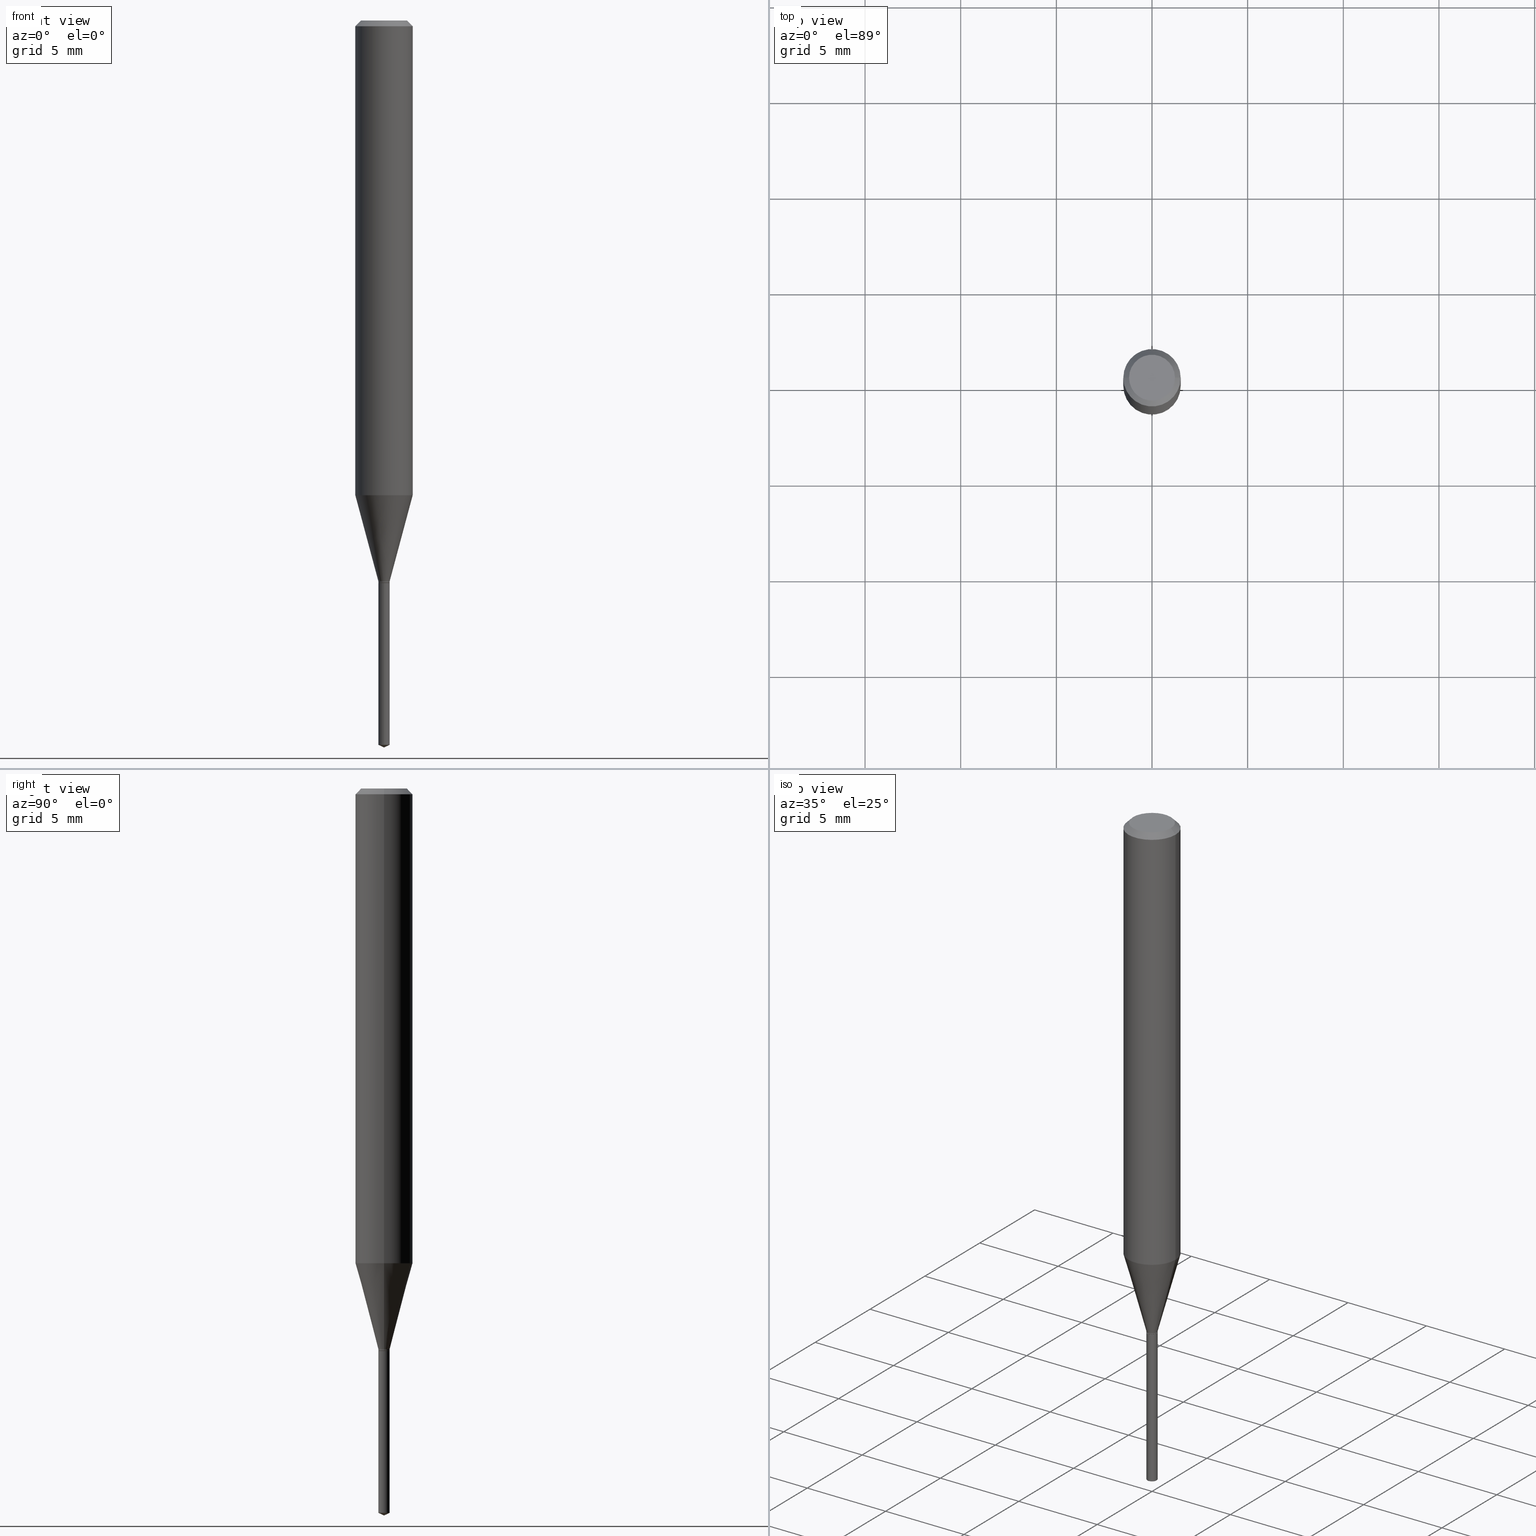
[diagram: canonical four-view strip — front | top / right | iso, engineering-drawing reading convention]
A machine part, canonical four-view strip (front | top / right | iso — engineering-drawing reading convention). The complete STEP part file that produces these views, byte-faithful:
ISO-10303-21;
HEADER;
FILE_DESCRIPTION (( 'STEP AP203' ),
    '1' );
FILE_NAME ('07778.STEP',
    '2024-04-24T02:49:59',
    ( '' ),
    ( '' ),
    'SwSTEP 2.0',
    'SolidWorks 2023',
    '' );
FILE_SCHEMA (( 'CONFIG_CONTROL_DESIGN' ));
ENDSEC;

DATA;
#1 = DIRECTION ( 'NONE',  ( -2.445457056059012515E-29, 3.491498165692530705E-15, 1.000000000000000000 ) ) ;
#2 = CYLINDRICAL_SURFACE ( 'NONE', #40, 0.05905000000000006077 ) ;
#3 = ORIENTED_EDGE ( 'NONE', *, *, #157, .F. ) ;
#4 = CARTESIAN_POINT ( 'NONE',  ( -0.05905000000000011628, -2.991302175709703364E-15, -0.9769141891808567069 ) ) ;
#5 = CIRCLE ( 'NONE', #446, 0.05905000000000011628 ) ;
#6 = PRODUCT_DEFINITION_FORMATION_WITH_SPECIFIED_SOURCE ( 'ANY', '', #358, .NOT_KNOWN. ) ;
#7 = CARTESIAN_POINT ( 'NONE',  ( 2.888098660104664204E-31, -4.123439461173780263E-17, -0.01181000000000007218 ) ) ;
#8 = ORIENTED_EDGE ( 'NONE', *, *, #89, .T. ) ;
#9 = EDGE_CURVE ( 'NONE', #400, #361, #149, .T. ) ;
#10 = DIRECTION ( 'NONE',  ( 2.445468806185136597E-29, -3.491481338843145583E-15, -1.000000000000000000 ) ) ;
#11 = ORIENTED_EDGE ( 'NONE', *, *, #9, .T. ) ;
#12 = CYLINDRICAL_SURFACE ( 'NONE', #175, 0.01159999999999999920 ) ;
#13 = EDGE_CURVE ( 'NONE', #387, #324, #28, .T. ) ;
#14 = EDGE_LOOP ( 'NONE', ( #282, #55, #213, #448 ) ) ;
#15 = VECTOR ( 'NONE', #228, 39.37007874015748143 ) ;
#16 = ORIENTED_EDGE ( 'NONE', *, *, #481, .T. ) ;
#17 = ORIENTED_EDGE ( 'NONE', *, *, #13, .F. ) ;
#18 = CYLINDRICAL_SURFACE ( 'NONE', #332, 0.01159999999999999920 ) ;
#19 = DIRECTION ( 'NONE',  ( 6.439704144417054808E-15, 0.9063077870366557098, 0.4226182617406872843 ) ) ;
#20 = CIRCLE ( 'NONE', #113, 0.01159999999999999920 ) ;
#21 = AXIS2_PLACEMENT_3D ( 'NONE', #374, #1, #34 ) ;
#22 = CARTESIAN_POINT ( 'NONE',  ( -0.01159999999999999920, -3.946746507676818365E-15, -1.153999999999999915 ) ) ;
#23 = APPROVAL_DATE_TIME ( #415, #360 ) ;
#24 = CARTESIAN_POINT ( 'NONE',  ( 3.645434012246895852E-29, -5.204724825550511922E-15, -1.490690831165402130 ) ) ;
#25 = LINE ( 'NONE', #480, #398 ) ;
#26 = APPROVAL_STATUS ( 'not_yet_approved' ) ;
#27 = EDGE_CURVE ( 'NONE', #60, #389, #253, .T. ) ;
#28 = LINE ( 'NONE', #103, #348 ) ;
#29 = COORDINATED_UNIVERSAL_TIME_OFFSET ( 5, 0, .BEHIND. ) ;
#30 = DIRECTION ( 'NONE',  ( -6.982962677686266711E-15, -1.000000000000000000, 3.520397390770377745E-15 ) ) ;
#31 = CIRCLE ( 'NONE', #97, 0.04724000000000000421 ) ;
#32 = DIRECTION ( 'NONE',  ( 1.000000000000000000, -6.982962677686266711E-15, 0.000000000000000000 ) ) ;
#33 = PERSON_AND_ORGANIZATION_ROLE ( 'design_supplier' ) ;
#34 = DIRECTION ( 'NONE',  ( -6.982962677686266711E-15, -1.000000000000000000, 0.000000000000000000 ) ) ;
#35 = CARTESIAN_POINT ( 'NONE',  ( 2.830630143159295633E-29, -4.041389649710940900E-15, -1.157499999999999973 ) ) ;
#36 = ADVANCED_FACE ( 'NONE', ( #182 ), #251, .F. ) ;
#37 = EDGE_CURVE ( 'NONE', #316, #472, #401, .T. ) ;
#38 = DIRECTION ( 'NONE',  ( -2.445468806185136597E-29, 3.491481338843145583E-15, 1.000000000000000000 ) ) ;
#39 = VECTOR ( 'NONE', #451, 39.37007874015748143 ) ;
#40 = AXIS2_PLACEMENT_3D ( 'NONE', #159, #308, #121 ) ;
#41 =( NAMED_UNIT ( * ) PLANE_ANGLE_UNIT ( ) SI_UNIT ( $, .RADIAN. ) );
#42 = DIRECTION ( 'NONE',  ( -2.445468806185136597E-29, 3.491481338843145583E-15, 1.000000000000000000 ) ) ;
#43 = EDGE_CURVE ( 'NONE', #160, #204, #20, .T. ) ;
#44 = CARTESIAN_POINT ( 'NONE',  ( 2.829407408756202832E-29, -4.039643909041518608E-15, -1.156999999999999806 ) ) ;
#45 = ORIENTED_EDGE ( 'NONE', *, *, #481, .F. ) ;
#46 = LINE ( 'NONE', #266, #399 ) ;
#47 = ADVANCED_BREP_SHAPE_REPRESENTATION ( '07778', ( #135, #141, #293 ), #407 ) ;
#48 = DIRECTION ( 'NONE',  ( -6.982962677686266711E-15, -1.000000000000000000, 0.000000000000000000 ) ) ;
#49 = ORIENTED_EDGE ( 'NONE', *, *, #359, .F. ) ;
#50 = AXIS2_PLACEMENT_3D ( 'NONE', #342, #155, #305 ) ;
#51 = DIRECTION ( 'NONE',  ( -2.445468806185136597E-29, 3.491481338843145583E-15, 1.000000000000000000 ) ) ;
#52 = VERTEX_POINT ( 'NONE', #177 ) ;
#53 = CC_DESIGN_PERSON_AND_ORGANIZATION_ASSIGNMENT ( #484, #104, ( #6 ) ) ;
#54 = DIRECTION ( 'NONE',  ( 1.000000000000000000, -6.982962677686266711E-15, 0.000000000000000000 ) ) ;
#55 = ORIENTED_EDGE ( 'NONE', *, *, #359, .T. ) ;
#56 = ADVANCED_FACE ( 'NONE', ( #296 ), #143, .T. ) ;
#57 = CARTESIAN_POINT ( 'NONE',  ( 0.01159999999999999920, -4.120646276102679529E-15, -1.156999999999999806 ) ) ;
#58 = ORIENTED_EDGE ( 'NONE', *, *, #294, .T. ) ;
#59 = APPLICATION_CONTEXT ( 'configuration controlled 3d designs of mechanical parts and assemblies' ) ;
#60 = VERTEX_POINT ( 'NONE', #62 ) ;
#61 = PRODUCT_RELATED_PRODUCT_CATEGORY ( 'detail', '', ( #358 ) ) ;
#62 = CARTESIAN_POINT ( 'NONE',  ( 0.01159999999999999920, -4.110171832086150508E-15, -1.153999999999999915 ) ) ;
#63 = ORIENTED_EDGE ( 'NONE', *, *, #433, .F. ) ;
#64 = CARTESIAN_POINT ( 'NONE',  ( 2.822071002337647144E-29, -4.029169465024989587E-15, -1.153999999999999915 ) ) ;
#65 = VECTOR ( 'NONE', #90, 39.37007874015748143 ) ;
#66 = DIRECTION ( 'NONE',  ( -0.2588190451025213501, 5.211531920934551042E-15, 0.9659258262890682012 ) ) ;
#67 = ADVANCED_FACE ( 'NONE', ( #362 ), #18, .T. ) ;
#68 = ORIENTED_EDGE ( 'NONE', *, *, #134, .T. ) ;
#69 = DIRECTION ( 'NONE',  ( -2.445468806185136597E-29, 3.491481338843145583E-15, 1.000000000000000000 ) ) ;
#70 = ORIENTED_EDGE ( 'NONE', *, *, #377, .T. ) ;
#71 = PERSON_AND_ORGANIZATION ( #230, #98 ) ;
#72 = DIRECTION ( 'NONE',  ( -2.445468806185136597E-29, 3.491481338843145583E-15, 1.000000000000000000 ) ) ;
#73 = DATE_AND_TIME ( #259, #163 ) ;
#74 = FACE_OUTER_BOUND ( 'NONE', #209, .T. ) ;
#75 = CARTESIAN_POINT ( 'NONE',  ( 2.830630143159295633E-29, -4.041389649710940900E-15, -1.157499999999999973 ) ) ;
#76 = LENGTH_MEASURE_WITH_UNIT ( LENGTH_MEASURE( 0.02539999999999999897 ), #312 );
#77 = EDGE_CURVE ( 'NONE', #167, #173, #101, .T. ) ;
#78 = DIRECTION ( 'NONE',  ( -2.445468806185136597E-29, 3.491481338843145583E-15, 1.000000000000000000 ) ) ;
#79 = CLOSED_SHELL ( 'NONE', ( #375, #477, #458, #170, #140 ) ) ;
#80 = CIRCLE ( 'NONE', #268, 0.05904999999999999832 ) ;
#81 = LINE ( 'NONE', #117, #15 ) ;
#82 = DATE_AND_TIME ( #192, #270 ) ;
#83 = DIRECTION ( 'NONE',  ( -6.982962677686266711E-15, -1.000000000000000000, 0.000000000000000000 ) ) ;
#84 = CARTESIAN_POINT ( 'NONE',  ( 8.242295734819991627E-17, 0.01159999999999595729, -1.157499999999999973 ) ) ;
#85 = ORIENTED_EDGE ( 'NONE', *, *, #426, .F. ) ;
#86 = AXIS2_PLACEMENT_3D ( 'NONE', #75, #344, #262 ) ;
#87 = CIRCLE ( 'NONE', #130, 0.01159999999999999920 ) ;
#88 = EDGE_CURVE ( 'NONE', #389, #167, #216, .T. ) ;
#89 = EDGE_CURVE ( 'NONE', #327, #472, #25, .T. ) ;
#90 = DIRECTION ( 'NONE',  ( -0.7071067811865453523, 2.468850131082234184E-15, -0.7071067811865496822 ) ) ;
#91 = ORIENTED_EDGE ( 'NONE', *, *, #13, .T. ) ;
#92 = ADVANCED_FACE ( 'NONE', ( #423 ), #459, .T. ) ;
#93 = FACE_OUTER_BOUND ( 'NONE', #309, .T. ) ;
#94 = EDGE_LOOP ( 'NONE', ( #281, #288, #16, #470 ) ) ;
#95 = ORIENTED_EDGE ( 'NONE', *, *, #153, .T. ) ;
#96 = AXIS2_PLACEMENT_3D ( 'NONE', #198, #264, #265 ) ;
#97 = AXIS2_PLACEMENT_3D ( 'NONE', #380, #38, #421 ) ;
#98 = ORGANIZATION ( 'UNSPECIFIED', 'UNSPECIFIED', '' ) ;
#99 = CARTESIAN_POINT ( 'NONE',  ( 0.000000000000000000, 0.000000000000000000, 0.000000000000000000 ) ) ;
#100 = EDGE_CURVE ( 'NONE', #324, #60, #194, .T. ) ;
#101 = LINE ( 'NONE', #248, #267 ) ;
#102 = DIRECTION ( 'NONE',  ( -2.445468806185136597E-29, 3.491481338843145583E-15, 1.000000000000000000 ) ) ;
#103 = CARTESIAN_POINT ( 'NONE',  ( 0.01110000000000000049, -4.118900535433258025E-15, -1.157499999999999973 ) ) ;
#104 = PERSON_AND_ORGANIZATION_ROLE ( 'creator' ) ;
#105 = AXIS2_PLACEMENT_3D ( 'NONE', #424, #10, #436 ) ;
#106 = ORIENTED_EDGE ( 'NONE', *, *, #377, .F. ) ;
#107 = APPROVAL_DATE_TIME ( #291, #337 ) ;
#108 = ORIENTED_EDGE ( 'NONE', *, *, #37, .T. ) ;
#109 = PERSON_AND_ORGANIZATION ( #230, #98 ) ;
#110 = CARTESIAN_POINT ( 'NONE',  ( 0.05904999999999999832, -4.535783407291118600E-16, -0.01181000000000007218 ) ) ;
#111 = PLANE ( 'NONE',  #86 ) ;
#112 = COORDINATED_UNIVERSAL_TIME_OFFSET ( 5, 0, .BEHIND. ) ;
#113 = AXIS2_PLACEMENT_3D ( 'NONE', #335, #367, #486 ) ;
#114 = EDGE_CURVE ( 'NONE', #361, #210, #301, .T. ) ;
#115 = DIRECTION ( 'NONE',  ( -2.445468806185136877E-29, 3.491481338843145188E-15, 1.000000000000000000 ) ) ;
#116 = SHAPE_DEFINITION_REPRESENTATION ( #304, #47 ) ;
#117 = CARTESIAN_POINT ( 'NONE',  ( -0.01110000000000000049, -3.962519406041569789E-15, -1.157499999999999973 ) ) ;
#118 = APPROVAL_DATE_TIME ( #82, #158 ) ;
#119 = FACE_OUTER_BOUND ( 'NONE', #206, .T. ) ;
#120 = ORIENTED_EDGE ( 'NONE', *, *, #466, .F. ) ;
#121 = DIRECTION ( 'NONE',  ( 1.000000000000000000, -6.982962677686266711E-15, 4.876176775795935793E-29 ) ) ;
#122 = VECTOR ( 'NONE', #235, 39.37007874015748143 ) ;
#123 = DIRECTION ( 'NONE',  ( 1.000000000000000000, -6.982962677686266711E-15, 0.000000000000000000 ) ) ;
#124 = DIRECTION ( 'NONE',  ( 1.000000000000000000, -6.982962677686266711E-15, 0.000000000000000000 ) ) ;
#125 = ORIENTED_EDGE ( 'NONE', *, *, #383, .T. ) ;
#126 = DESIGN_CONTEXT ( 'detailed design', #59, 'design' ) ;
#127 = FACE_OUTER_BOUND ( 'NONE', #94, .T. ) ;
#128 = ORIENTED_EDGE ( 'NONE', *, *, #435, .T. ) ;
#129 = VECTOR ( 'NONE', #115, 39.37007874015748143 ) ;
#130 = AXIS2_PLACEMENT_3D ( 'NONE', #388, #395, #48 ) ;
#131 = APPROVAL_PERSON_ORGANIZATION ( #162, #158, #199 ) ;
#132 = CARTESIAN_POINT ( 'NONE',  ( -0.01159999999999999920, -3.951983729685082876E-15, -1.156999999999999806 ) ) ;
#133 = ORIENTED_EDGE ( 'NONE', *, *, #239, .T. ) ;
#134 = EDGE_CURVE ( 'NONE', #52, #387, #452, .T. ) ;
#135 = MANIFOLD_SOLID_BREP ( 'Body-Move/Copy2[1]', #79 ) ;
#136 = ORIENTED_EDGE ( 'NONE', *, *, #269, .T. ) ;
#137 = ORIENTED_EDGE ( 'NONE', *, *, #43, .T. ) ;
#138 = VECTOR ( 'NONE', #219, 39.37007874015748143 ) ;
#139 = DIRECTION ( 'NONE',  ( -6.328713451373398566E-15, -0.9063077870366527122, 0.4226182617406936126 ) ) ;
#140 = ADVANCED_FACE ( 'NONE', ( #119 ), #111, .F. ) ;
#141 = MANIFOLD_SOLID_BREP ( 'Body-Move/Copy2[2]', #323 ) ;
#142 = CARTESIAN_POINT ( 'NONE',  ( -8.100236706113237413E-17, -0.01160000000000404284, -1.157499999999999973 ) ) ;
#143 = CYLINDRICAL_SURFACE ( 'NONE', #317, 0.01159999999999999920 ) ;
#144 = COORDINATED_UNIVERSAL_TIME_OFFSET ( 5, 0, .BEHIND. ) ;
#145 = DIRECTION ( 'NONE',  ( -2.445457056059012515E-29, 3.491498165692530705E-15, 1.000000000000000000 ) ) ;
#146 = ORIENTED_EDGE ( 'NONE', *, *, #9, .F. ) ;
#147 = APPROVAL_STATUS ( 'not_yet_approved' ) ;
#148 = ORIENTED_EDGE ( 'NONE', *, *, #285, .F. ) ;
#149 = LINE ( 'NONE', #371, #460 ) ;
#150 = PERSON_AND_ORGANIZATION_ROLE ( 'classification_officer' ) ;
#151 = FACE_OUTER_BOUND ( 'NONE', #385, .T. ) ;
#152 = APPROVAL_ROLE ( '' ) ;
#153 = EDGE_CURVE ( 'NONE', #432, #389, #258, .T. ) ;
#154 = AXIS2_PLACEMENT_3D ( 'NONE', #191, #376, #338 ) ;
#155 = DIRECTION ( 'NONE',  ( -2.445468806185136597E-29, 3.491481338843145583E-15, 1.000000000000000000 ) ) ;
#156 = FACE_OUTER_BOUND ( 'NONE', #214, .T. ) ;
#157 = EDGE_CURVE ( 'NONE', #52, #432, #81, .T. ) ;
#158 = APPROVAL ( #381, 'UNSPECIFIED' ) ;
#159 = CARTESIAN_POINT ( 'NONE',  ( 0.000000000000000000, 0.000000000000000000, 0.000000000000000000 ) ) ;
#160 = VERTEX_POINT ( 'NONE', #234 ) ;
#161 = CARTESIAN_POINT ( 'NONE',  ( 8.242295734820810070E-17, 0.01159999999999595729, -1.157499999999999973 ) ) ;
#162 = PERSON_AND_ORGANIZATION ( #230, #98 ) ;
#163 = LOCAL_TIME ( 22, 49, 59.00000000000000000, #112 ) ;
#164 = DIRECTION ( 'NONE',  ( 0.2588190451025213501, 1.565188264969621968E-15, 0.9659258262890682012 ) ) ;
#165 = EDGE_LOOP ( 'NONE', ( #355, #95, #369, #245 ) ) ;
#166 = FACE_OUTER_BOUND ( 'NONE', #280, .T. ) ;
#167 = VERTEX_POINT ( 'NONE', #4 ) ;
#168 = CARTESIAN_POINT ( 'NONE',  ( 2.830630143159295633E-29, -4.041389649710940900E-15, -1.157499999999999973 ) ) ;
#169 = EDGE_LOOP ( 'NONE', ( #444, #483, #364, #45 ) ) ;
#170 = ADVANCED_FACE ( 'NONE', ( #74 ), #231, .T. ) ;
#171 = CONICAL_SURFACE ( 'NONE', #50, 0.01110000000000000049, 0.7853981633974119747 ) ;
#172 = VERTEX_POINT ( 'NONE', #190 ) ;
#173 = VERTEX_POINT ( 'NONE', #232 ) ;
#174 = DIRECTION ( 'NONE',  ( -2.445468806185136597E-29, 3.491481338843145583E-15, 1.000000000000000000 ) ) ;
#175 = AXIS2_PLACEMENT_3D ( 'NONE', #318, #352, #354 ) ;
#176 = LINE ( 'NONE', #467, #65 ) ;
#177 = CARTESIAN_POINT ( 'NONE',  ( -0.01110000000000000049, -3.959870178867458588E-15, -1.157499999999999973 ) ) ;
#178 = CALENDAR_DATE ( 2024, 23, 4 ) ;
#179 = CARTESIAN_POINT ( 'NONE',  ( -9.261917495037615480E-28, 1.322369467758159045E-13, 37.87397874015748300 ) ) ;
#180 = CARTESIAN_POINT ( 'NONE',  ( 0.05904999999999999832, -4.463468013801466955E-16, -0.01181000000000007218 ) ) ;
#181 = APPLICATION_PROTOCOL_DEFINITION ( 'international standard', 'config_control_design', 1994, #59 ) ;
#182 = FACE_OUTER_BOUND ( 'NONE', #238, .T. ) ;
#183 = DATE_AND_TIME ( #339, #310 ) ;
#184 = ADVANCED_FACE ( 'NONE', ( #386 ), #246, .T. ) ;
#185 = ADVANCED_FACE ( 'NONE', ( #156 ), #457, .F. ) ;
#186 = CIRCLE ( 'NONE', #422, 0.01159999999999999920 ) ;
#187 = LOCAL_TIME ( 22, 49, 59.00000000000000000, #144 ) ;
#188 = CARTESIAN_POINT ( 'NONE',  ( 4.132873053354867254E-48, -5.900647395337818946E-34, -1.690012582823346072E-19 ) ) ;
#189 = PERSON_AND_ORGANIZATION ( #230, #98 ) ;
#190 = CARTESIAN_POINT ( 'NONE',  ( -0.04724000000000000421, 3.504923541997677355E-16, -3.380025165670481712E-19 ) ) ;
#191 = CARTESIAN_POINT ( 'NONE',  ( 2.888098660104664204E-31, -4.123439461173780263E-17, -0.01181000000000007218 ) ) ;
#192 = CALENDAR_DATE ( 2024, 23, 4 ) ;
#193 = CIRCLE ( 'NONE', #334, 0.01110000000000000049 ) ;
#194 = LINE ( 'NONE', #271, #39 ) ;
#195 = CC_DESIGN_DATE_AND_TIME_ASSIGNMENT ( #73, #229, ( #220 ) ) ;
#196 = DIRECTION ( 'NONE',  ( 1.000000000000000000, -6.982962677686266711E-15, 0.000000000000000000 ) ) ;
#197 =( CONVERSION_BASED_UNIT ( 'INCH', #76 ) LENGTH_UNIT ( ) NAMED_UNIT ( #307 ) );
#198 = CARTESIAN_POINT ( 'NONE',  ( 2.830630143159295633E-29, -4.041389649710940900E-15, -1.157499999999999973 ) ) ;
#199 = APPROVAL_ROLE ( '' ) ;
#200 = CC_DESIGN_PERSON_AND_ORGANIZATION_ASSIGNMENT ( #109, #33, ( #6 ) ) ;
#201 = AXIS2_PLACEMENT_3D ( 'NONE', #299, #72, #345 ) ;
#202 = DIRECTION ( 'NONE',  ( -2.445468806185136597E-29, 3.491481338843145583E-15, 1.000000000000000000 ) ) ;
#203 = AXIS2_PLACEMENT_3D ( 'NONE', #64, #242, #123 ) ;
#204 = VERTEX_POINT ( 'NONE', #161 ) ;
#205 = CARTESIAN_POINT ( 'NONE',  ( 2.389013175961430346E-29, -3.410877661176043645E-15, -0.9769141891808567069 ) ) ;
#206 = EDGE_LOOP ( 'NONE', ( #137, #278 ) ) ;
#207 = DIRECTION ( 'NONE',  ( 1.000000000000000000, -6.982962677686266711E-15, 0.000000000000000000 ) ) ;
#208 = ADVANCED_FACE ( 'NONE', ( #151 ), #171, .T. ) ;
#209 = EDGE_LOOP ( 'NONE', ( #331, #125, #223, #63 ) ) ;
#210 = VERTEX_POINT ( 'NONE', #306 ) ;
#211 = CONICAL_SURFACE ( 'NONE', #292, 84.42940631927616835, 1.134464013796324222 ) ;
#212 = CIRCLE ( 'NONE', #356, 0.01159999999999999920 ) ;
#213 = ORIENTED_EDGE ( 'NONE', *, *, #100, .T. ) ;
#214 = EDGE_LOOP ( 'NONE', ( #275, #295 ) ) ;
#215 = CARTESIAN_POINT ( 'NONE',  ( -8.100236706112417737E-17, -0.01160000000000520164, -1.490690831165402130 ) ) ;
#216 = LINE ( 'NONE', #22, #343 ) ;
#217 = DIRECTION ( 'NONE',  ( 0.000000000000000000, 0.000000000000000000, 1.000000000000000000 ) ) ;
#218 = CONICAL_SURFACE ( 'NONE', #418, 0.01110000000000000049, 0.7853981633974119747 ) ;
#219 = DIRECTION ( 'NONE',  ( -2.445457056059012515E-29, 3.491498165692530705E-15, 1.000000000000000000 ) ) ;
#220 = SECURITY_CLASSIFICATION ( '', '', #487 ) ;
#221 = DIRECTION ( 'NONE',  ( 1.000000000000000000, -6.982962677686267499E-15, 4.876176775795935793E-29 ) ) ;
#222 = DIRECTION ( 'NONE',  ( -6.982962677686266711E-15, -1.000000000000000000, 3.520397390770377745E-15 ) ) ;
#223 = ORIENTED_EDGE ( 'NONE', *, *, #370, .T. ) ;
#224 = DIRECTION ( 'NONE',  ( 0.7071067811865218156, -2.468850131081987665E-15, 0.7071067811865732189 ) ) ;
#225 = MECHANICAL_CONTEXT ( 'NONE', #428, 'mechanical' ) ;
#226 = CIRCLE ( 'NONE', #473, 0.05905000000000011628 ) ;
#227 = CC_DESIGN_APPROVAL ( #360, ( #300 ) ) ;
#228 = DIRECTION ( 'NONE',  ( -0.7071067811865218156, 7.493145998870261075E-15, 0.7071067811865732189 ) ) ;
#229 = DATE_TIME_ROLE ( 'classification_date' ) ;
#230 = PERSON ( 'UNSPECIFIED', 'UNSPECIFIED', 'UNSPECIFIED', ('UNSPECIFIED'), ('UNSPECIFIED'), ('UNSPECIFIED') ) ;
#231 = CYLINDRICAL_SURFACE ( 'NONE', #21, 0.01159999999999999920 ) ;
#232 = CARTESIAN_POINT ( 'NONE',  ( -0.05904999999999999832, -1.306480542427550405E-15, -0.01181000000000007218 ) ) ;
#233 = CARTESIAN_POINT ( 'NONE',  ( 2.389013175961430346E-29, -3.410877661176043645E-15, -0.9769141891808567069 ) ) ;
#234 = CARTESIAN_POINT ( 'NONE',  ( -8.100236706113237413E-17, -0.01160000000000404284, -1.157499999999999973 ) ) ;
#235 = DIRECTION ( 'NONE',  ( -2.445457056059012515E-29, 3.491498165692530705E-15, 1.000000000000000000 ) ) ;
#236 = EDGE_LOOP ( 'NONE', ( #146, #468, #413 ) ) ;
#237 = LINE ( 'NONE', #84, #138 ) ;
#238 = EDGE_LOOP ( 'NONE', ( #243, #133 ) ) ;
#239 = EDGE_CURVE ( 'NONE', #316, #172, #430, .T. ) ;
#240 = LINE ( 'NONE', #363, #406 ) ;
#241 = EDGE_LOOP ( 'NONE', ( #427, #11, #353 ) ) ;
#242 = DIRECTION ( 'NONE',  ( -2.445468806185136597E-29, 3.491481338843145583E-15, 1.000000000000000000 ) ) ;
#243 = ORIENTED_EDGE ( 'NONE', *, *, #249, .T. ) ;
#244 = AXIS2_PLACEMENT_3D ( 'NONE', #450, #489, #419 ) ;
#245 = ORIENTED_EDGE ( 'NONE', *, *, #100, .F. ) ;
#246 = CONICAL_SURFACE ( 'NONE', #154, 0.05904999999999999832, 0.7853981633974452814 ) ;
#247 = ORIENTED_EDGE ( 'NONE', *, *, #426, .T. ) ;
#248 = CARTESIAN_POINT ( 'NONE',  ( -0.05905000000000006077, 4.195754854663395916E-16, -2.904631170795524694E-30 ) ) ;
#249 = EDGE_CURVE ( 'NONE', #172, #316, #31, .T. ) ;
#250 = DIRECTION ( 'NONE',  ( -2.445457056059012515E-29, 3.491498165692530705E-15, 1.000000000000000000 ) ) ;
#251 = PLANE ( 'NONE',  #429 ) ;
#252 = APPLICATION_PROTOCOL_DEFINITION ( 'international standard', 'config_control_design', 1994, #428 ) ;
#253 = CIRCLE ( 'NONE', #417, 0.01159999999999999920 ) ;
#254 = CONICAL_SURFACE ( 'NONE', #203, 0.01159999999999999920, 0.2617993877991500740 ) ;
#255 = CC_DESIGN_APPROVAL ( #158, ( #220 ) ) ;
#256 = DIRECTION ( 'NONE',  ( 2.438088387897960049E-29, -3.491481338843145188E-15, -1.000000000000000000 ) ) ;
#257 = CARTESIAN_POINT ( 'NONE',  ( 2.822071002337647144E-29, -4.029169465024989587E-15, -1.153999999999999915 ) ) ;
#258 = LINE ( 'NONE', #416, #129 ) ;
#259 = CALENDAR_DATE ( 2024, 23, 4 ) ;
#260 = DIRECTION ( 'NONE',  ( -2.445457056059012515E-29, 3.491498165692530705E-15, 1.000000000000000000 ) ) ;
#261 = AXIS2_PLACEMENT_3D ( 'NONE', #404, #431, #124 ) ;
#262 = DIRECTION ( 'NONE',  ( 6.982962677686265922E-15, 1.000000000000000000, -3.491498165692530705E-15 ) ) ;
#263 = COORDINATED_UNIVERSAL_TIME_OFFSET ( 5, 0, .BEHIND. ) ;
#264 = DIRECTION ( 'NONE',  ( -2.445468806185136597E-29, 3.491481338843145583E-15, 1.000000000000000000 ) ) ;
#265 = DIRECTION ( 'NONE',  ( 1.000000000000000000, -6.982962677686262766E-15, 0.000000000000000000 ) ) ;
#266 = CARTESIAN_POINT ( 'NONE',  ( 0.01159999999999999920, -4.110171832086150508E-15, -1.153999999999999915 ) ) ;
#267 = VECTOR ( 'NONE', #402, 39.37007874015748143 ) ;
#268 = AXIS2_PLACEMENT_3D ( 'NONE', #412, #69, #485 ) ;
#269 = EDGE_CURVE ( 'NONE', #167, #327, #5, .T. ) ;
#270 = LOCAL_TIME ( 22, 49, 59.00000000000000000, #263 ) ;
#271 = CARTESIAN_POINT ( 'NONE',  ( 0.01159999999999999920, -8.100236706116069917E-17, 5.656365059923285338E-31 ) ) ;
#272 = LINE ( 'NONE', #142, #122 ) ;
#273 = ADVANCED_FACE ( 'NONE', ( #384 ), #2, .T. ) ;
#274 = DIRECTION ( 'NONE',  ( -2.445468806185136597E-29, 3.491481338843145583E-15, 1.000000000000000000 ) ) ;
#275 = ORIENTED_EDGE ( 'NONE', *, *, #435, .F. ) ;
#276 = FACE_OUTER_BOUND ( 'NONE', #169, .T. ) ;
#277 = CONICAL_SURFACE ( 'NONE', #105, 0.05904999999999999832, 0.7853981633974452814 ) ;
#278 = ORIENTED_EDGE ( 'NONE', *, *, #433, .T. ) ;
#279 = CARTESIAN_POINT ( 'NONE',  ( 3.658648301569888039E-29, -5.223630405692595388E-15, -1.496099999999999985 ) ) ;
#280 = EDGE_LOOP ( 'NONE', ( #474, #58, #471, #351 ) ) ;
#281 = ORIENTED_EDGE ( 'NONE', *, *, #88, .F. ) ;
#282 = ORIENTED_EDGE ( 'NONE', *, *, #153, .F. ) ;
#283 = CIRCLE ( 'NONE', #482, 0.01159999999999999920 ) ;
#284 = APPROVAL_PERSON_ORGANIZATION ( #453, #337, #330 ) ;
#285 = EDGE_CURVE ( 'NONE', #324, #432, #283, .T. ) ;
#286 = DIRECTION ( 'NONE',  ( -2.445468806185136597E-29, 3.491481338843145583E-15, 1.000000000000000000 ) ) ;
#287 = CARTESIAN_POINT ( 'NONE',  ( -0.01159999999999999920, -3.951983729685082876E-15, -1.153999999999999915 ) ) ;
#288 = ORIENTED_EDGE ( 'NONE', *, *, #439, .T. ) ;
#289 = PERSON_AND_ORGANIZATION ( #230, #98 ) ;
#290 = DIRECTION ( 'NONE',  ( -1.000000000000000000, 6.982962677686265922E-15, -4.876176775795935793E-29 ) ) ;
#291 = DATE_AND_TIME ( #178, #462 ) ;
#292 = AXIS2_PLACEMENT_3D ( 'NONE', #302, #260, #30 ) ;
#293 = AXIS2_PLACEMENT_3D ( 'NONE', #479, #217, #447 ) ;
#294 = EDGE_CURVE ( 'NONE', #210, #204, #237, .T. ) ;
#295 = ORIENTED_EDGE ( 'NONE', *, *, #134, .F. ) ;
#296 = FACE_OUTER_BOUND ( 'NONE', #165, .T. ) ;
#297 = CALENDAR_DATE ( 2024, 23, 4 ) ;
#298 = DIRECTION ( 'NONE',  ( 1.000000000000000000, -6.982962677686266711E-15, 0.000000000000000000 ) ) ;
#299 = CARTESIAN_POINT ( 'NONE',  ( 0.000000000000000000, 0.000000000000000000, 0.000000000000000000 ) ) ;
#300 = PRODUCT_DEFINITION ( 'UNKNOWN', '', #6, #126 ) ;
#301 = CIRCLE ( 'NONE', #244, 0.01159999999999999920 ) ;
#302 = CARTESIAN_POINT ( 'NONE',  ( -9.261917495037615480E-28, 1.322369467758159045E-13, 37.87397874015748300 ) ) ;
#303 = AXIS2_PLACEMENT_3D ( 'NONE', #455, #42, #420 ) ;
#304 = PRODUCT_DEFINITION_SHAPE ( 'NONE', 'NONE',  #300 ) ;
#305 = DIRECTION ( 'NONE',  ( 1.000000000000000000, -6.982962677686262766E-15, 0.000000000000000000 ) ) ;
#306 = CARTESIAN_POINT ( 'NONE',  ( 8.242295734820805139E-17, 0.01159999999999478983, -1.490690831165402130 ) ) ;
#307 = DIMENSIONAL_EXPONENTS ( 1.000000000000000000, 0.000000000000000000, 0.000000000000000000, 0.000000000000000000, 0.000000000000000000, 0.000000000000000000, 0.000000000000000000 ) ;
#308 = DIRECTION ( 'NONE',  ( -2.445468806185136597E-29, 3.491481338843145583E-15, 1.000000000000000000 ) ) ;
#309 = EDGE_LOOP ( 'NONE', ( #128, #397, #148, #17 ) ) ;
#310 = LOCAL_TIME ( 22, 49, 59.00000000000000000, #29 ) ;
#311 = DIRECTION ( 'NONE',  ( 1.000000000000000000, -6.982962677686266711E-15, 0.000000000000000000 ) ) ;
#312 =( LENGTH_UNIT ( ) NAMED_UNIT ( * ) SI_UNIT ( $, .METRE. ) );
#313 = CARTESIAN_POINT ( 'NONE',  ( 2.822071002337647144E-29, -4.029169465024989587E-15, -1.153999999999999915 ) ) ;
#314 = ORIENTED_EDGE ( 'NONE', *, *, #239, .F. ) ;
#315 = DIRECTION ( 'NONE',  ( -2.445468806185136597E-29, 3.491481338843145583E-15, 1.000000000000000000 ) ) ;
#316 = VERTEX_POINT ( 'NONE', #476 ) ;
#317 = AXIS2_PLACEMENT_3D ( 'NONE', #99, #286, #221 ) ;
#318 = CARTESIAN_POINT ( 'NONE',  ( 2.830630143159295633E-29, -4.041389649710940900E-15, -1.157499999999999973 ) ) ;
#319 = CIRCLE ( 'NONE', #261, 0.01159999999999999920 ) ;
#320 = EDGE_LOOP ( 'NONE', ( #357, #136, #8, #106 ) ) ;
#321 = ORIENTED_EDGE ( 'NONE', *, *, #77, .T. ) ;
#322 = EDGE_LOOP ( 'NONE', ( #465, #438, #247, #70 ) ) ;
#323 = CLOSED_SHELL ( 'NONE', ( #328, #379, #273, #347, #56, #67, #340, #92, #184, #36, #185, #208 ) ) ;
#324 = VERTEX_POINT ( 'NONE', #57 ) ;
#325 = AXIS2_PLACEMENT_3D ( 'NONE', #35, #488, #346 ) ;
#326 = CARTESIAN_POINT ( 'NONE',  ( 2.830630143159295633E-29, -4.041389649710940900E-15, -1.157499999999999973 ) ) ;
#327 = VERTEX_POINT ( 'NONE', #391 ) ;
#328 = ADVANCED_FACE ( 'NONE', ( #93 ), #218, .T. ) ;
#329 = DIRECTION ( 'NONE',  ( 0.7071067811865453523, -7.319954787623248157E-15, -0.7071067811865496822 ) ) ;
#330 = APPROVAL_ROLE ( '' ) ;
#331 = ORIENTED_EDGE ( 'NONE', *, *, #294, .F. ) ;
#332 = AXIS2_PLACEMENT_3D ( 'NONE', #478, #174, #442 ) ;
#333 = COORDINATED_UNIVERSAL_TIME_OFFSET ( 5, 0, .BEHIND. ) ;
#334 = AXIS2_PLACEMENT_3D ( 'NONE', #326, #202, #350 ) ;
#335 = CARTESIAN_POINT ( 'NONE',  ( 2.830630143159295633E-29, -4.041389649710940900E-15, -1.157499999999999973 ) ) ;
#336 = PERSON_AND_ORGANIZATION ( #230, #98 ) ;
#337 = APPROVAL ( #26, 'UNSPECIFIED' ) ;
#338 = DIRECTION ( 'NONE',  ( -1.000000000000000000, 6.982962677686266711E-15, 0.000000000000000000 ) ) ;
#339 = CALENDAR_DATE ( 2024, 23, 4 ) ;
#340 = ADVANCED_FACE ( 'NONE', ( #127 ), #254, .T. ) ;
#341 = EDGE_CURVE ( 'NONE', #327, #167, #226, .T. ) ;
#342 = CARTESIAN_POINT ( 'NONE',  ( 2.830630143159295633E-29, -4.041389649710940900E-15, -1.157499999999999973 ) ) ;
#343 = VECTOR ( 'NONE', #66, 39.37007874015747433 ) ;
#344 = DIRECTION ( 'NONE',  ( 2.445457056059012235E-29, -3.491498165692530705E-15, -1.000000000000000000 ) ) ;
#345 = DIRECTION ( 'NONE',  ( 1.000000000000000000, -6.982962677686266711E-15, 4.876176775795935793E-29 ) ) ;
#346 = DIRECTION ( 'NONE',  ( 1.000000000000000000, -6.982962677686265922E-15, 4.876176775795935793E-29 ) ) ;
#347 = ADVANCED_FACE ( 'NONE', ( #276 ), #490, .T. ) ;
#348 = VECTOR ( 'NONE', #224, 39.37007874015748143 ) ;
#349 = CC_DESIGN_SECURITY_CLASSIFICATION ( #220, ( #6 ) ) ;
#350 = DIRECTION ( 'NONE',  ( 1.000000000000000000, -6.982962677686262766E-15, 0.000000000000000000 ) ) ;
#351 = ORIENTED_EDGE ( 'NONE', *, *, #370, .F. ) ;
#352 = DIRECTION ( 'NONE',  ( -2.445457056059012515E-29, 3.491498165692530705E-15, 1.000000000000000000 ) ) ;
#353 = ORIENTED_EDGE ( 'NONE', *, *, #383, .F. ) ;
#354 = DIRECTION ( 'NONE',  ( -6.982962677686266711E-15, -1.000000000000000000, 0.000000000000000000 ) ) ;
#355 = ORIENTED_EDGE ( 'NONE', *, *, #285, .T. ) ;
#356 = AXIS2_PLACEMENT_3D ( 'NONE', #24, #250, #83 ) ;
#357 = ORIENTED_EDGE ( 'NONE', *, *, #77, .F. ) ;
#358 = PRODUCT ( '07778', '07778', '', ( #225 ) ) ;
#359 = EDGE_CURVE ( 'NONE', #432, #324, #319, .T. ) ;
#360 = APPROVAL ( #147, 'UNSPECIFIED' ) ;
#361 = VERTEX_POINT ( 'NONE', #215 ) ;
#362 = FACE_OUTER_BOUND ( 'NONE', #14, .T. ) ;
#363 = CARTESIAN_POINT ( 'NONE',  ( 3.658675741637279389E-29, -5.223591451536267840E-15, -1.496099999999999985 ) ) ;
#364 = ORIENTED_EDGE ( 'NONE', *, *, #341, .F. ) ;
#365 = APPROVAL_PERSON_ORGANIZATION ( #71, #360, #152 ) ;
#366 = DIRECTION ( 'NONE',  ( 1.000000000000000000, -6.982962677686266711E-15, 0.000000000000000000 ) ) ;
#367 = DIRECTION ( 'NONE',  ( -2.445457056059012515E-29, 3.491498165692530705E-15, 1.000000000000000000 ) ) ;
#368 = PERSON_AND_ORGANIZATION_ROLE ( 'creator' ) ;
#369 = ORIENTED_EDGE ( 'NONE', *, *, #27, .F. ) ;
#370 = EDGE_CURVE ( 'NONE', #361, #160, #272, .T. ) ;
#371 = CARTESIAN_POINT ( 'NONE',  ( 3.658648301569888039E-29, -5.223630405692593810E-15, -1.496099999999999985 ) ) ;
#372 = VECTOR ( 'NONE', #329, 39.37007874015748143 ) ;
#373 = CC_DESIGN_APPROVAL ( #337, ( #6 ) ) ;
#374 = CARTESIAN_POINT ( 'NONE',  ( 2.830630143159295633E-29, -4.041389649710940900E-15, -1.157499999999999973 ) ) ;
#375 = ADVANCED_FACE ( 'NONE', ( #166 ), #12, .T. ) ;
#376 = DIRECTION ( 'NONE',  ( 2.445468806185136597E-29, -3.491481338843145583E-15, -1.000000000000000000 ) ) ;
#377 = EDGE_CURVE ( 'NONE', #173, #472, #390, .T. ) ;
#378 = FACE_OUTER_BOUND ( 'NONE', #236, .T. ) ;
#379 = ADVANCED_FACE ( 'NONE', ( #425 ), #277, .T. ) ;
#380 = CARTESIAN_POINT ( 'NONE',  ( 8.265746106709734507E-48, -1.180129479067563789E-33, -3.380025165646692144E-19 ) ) ;
#381 = APPROVAL_STATUS ( 'not_yet_approved' ) ;
#382 = AXIS2_PLACEMENT_3D ( 'NONE', #443, #315, #207 ) ;
#383 = EDGE_CURVE ( 'NONE', #210, #361, #212, .T. ) ;
#384 = FACE_OUTER_BOUND ( 'NONE', #441, .T. ) ;
#385 = EDGE_LOOP ( 'NONE', ( #3, #68, #91, #49 ) ) ;
#386 = FACE_OUTER_BOUND ( 'NONE', #322, .T. ) ;
#387 = VERTEX_POINT ( 'NONE', #469 ) ;
#388 = CARTESIAN_POINT ( 'NONE',  ( 2.830630143159295633E-29, -4.041389649710940900E-15, -1.157499999999999973 ) ) ;
#389 = VERTEX_POINT ( 'NONE', #287 ) ;
#390 = CIRCLE ( 'NONE', #454, 0.05904999999999999832 ) ;
#391 = CARTESIAN_POINT ( 'NONE',  ( 0.05905000000000011628, -3.823221607293418566E-15, -0.9769141891808567069 ) ) ;
#392 = ORIENTED_EDGE ( 'NONE', *, *, #466, .T. ) ;
#393 = DIRECTION ( 'NONE',  ( 1.000000000000000000, -6.982962677686262766E-15, 0.000000000000000000 ) ) ;
#394 = ORIENTED_EDGE ( 'NONE', *, *, #341, .T. ) ;
#395 = DIRECTION ( 'NONE',  ( -2.445457056059012515E-29, 3.491498165692530705E-15, 1.000000000000000000 ) ) ;
#396 = CC_DESIGN_DATE_AND_TIME_ASSIGNMENT ( #183, #408, ( #300 ) ) ;
#397 = ORIENTED_EDGE ( 'NONE', *, *, #157, .T. ) ;
#398 = VECTOR ( 'NONE', #445, 39.37007874015748143 ) ;
#399 = VECTOR ( 'NONE', #164, 39.37007874015747433 ) ;
#400 = VERTEX_POINT ( 'NONE', #279 ) ;
#401 = LINE ( 'NONE', #180, #372 ) ;
#402 = DIRECTION ( 'NONE',  ( -2.445468806185136877E-29, 3.491481338843145188E-15, 1.000000000000000000 ) ) ;
#403 =( NAMED_UNIT ( * ) SI_UNIT ( $, .STERADIAN. ) SOLID_ANGLE_UNIT ( ) );
#404 = CARTESIAN_POINT ( 'NONE',  ( 2.829407408756202832E-29, -4.039643909041518608E-15, -1.156999999999999806 ) ) ;
#405 = DIRECTION ( 'NONE',  ( -2.445468806185136597E-29, 3.491481338843145583E-15, 1.000000000000000000 ) ) ;
#406 = VECTOR ( 'NONE', #19, 39.37007874015748854 ) ;
#407 =( GEOMETRIC_REPRESENTATION_CONTEXT ( 3 ) GLOBAL_UNCERTAINTY_ASSIGNED_CONTEXT ( ( #475 ) ) GLOBAL_UNIT_ASSIGNED_CONTEXT ( ( #197, #41, #403 ) ) REPRESENTATION_CONTEXT ( 'NONE', 'WORKASPACE' ) );
#408 = DATE_TIME_ROLE ( 'creation_date' ) ;
#409 = CC_DESIGN_PERSON_AND_ORGANIZATION_ASSIGNMENT ( #336, #449, ( #358 ) ) ;
#410 = FACE_OUTER_BOUND ( 'NONE', #241, .T. ) ;
#411 = EDGE_LOOP ( 'NONE', ( #314, #108, #392, #85 ) ) ;
#412 = CARTESIAN_POINT ( 'NONE',  ( 2.888098660104664204E-31, -4.123439461173780263E-17, -0.01181000000000007218 ) ) ;
#413 = ORIENTED_EDGE ( 'NONE', *, *, #114, .F. ) ;
#414 = CC_DESIGN_PERSON_AND_ORGANIZATION_ASSIGNMENT ( #189, #150, ( #220 ) ) ;
#415 = DATE_AND_TIME ( #297, #187 ) ;
#416 = CARTESIAN_POINT ( 'NONE',  ( -0.01159999999999999920, 8.242295734817161588E-17, -5.705964704695690155E-31 ) ) ;
#417 = AXIS2_PLACEMENT_3D ( 'NONE', #257, #405, #32 ) ;
#418 = AXIS2_PLACEMENT_3D ( 'NONE', #168, #51, #393 ) ;
#419 = DIRECTION ( 'NONE',  ( -6.982962677686266711E-15, -1.000000000000000000, 0.000000000000000000 ) ) ;
#420 = DIRECTION ( 'NONE',  ( 1.000000000000000000, -6.982962677686266711E-15, 4.876185090822587894E-29 ) ) ;
#421 = DIRECTION ( 'NONE',  ( 1.000000000000000000, -6.982962677686266711E-15, 4.876185090822587894E-29 ) ) ;
#422 = AXIS2_PLACEMENT_3D ( 'NONE', #313, #464, #298 ) ;
#423 = FACE_OUTER_BOUND ( 'NONE', #320, .T. ) ;
#424 = CARTESIAN_POINT ( 'NONE',  ( 2.888098660104664204E-31, -4.123439461173780263E-17, -0.01181000000000007218 ) ) ;
#425 = FACE_OUTER_BOUND ( 'NONE', #411, .T. ) ;
#426 = EDGE_CURVE ( 'NONE', #172, #173, #176, .T. ) ;
#427 = ORIENTED_EDGE ( 'NONE', *, *, #434, .F. ) ;
#428 = APPLICATION_CONTEXT ( 'configuration controlled 3d designs of mechanical parts and assemblies' ) ;
#429 = AXIS2_PLACEMENT_3D ( 'NONE', #188, #256, #290 ) ;
#430 = CIRCLE ( 'NONE', #303, 0.04724000000000000421 ) ;
#431 = DIRECTION ( 'NONE',  ( -2.445468806185136597E-29, 3.491481338843145583E-15, 1.000000000000000000 ) ) ;
#432 = VERTEX_POINT ( 'NONE', #132 ) ;
#433 = EDGE_CURVE ( 'NONE', #204, #160, #87, .T. ) ;
#434 = EDGE_CURVE ( 'NONE', #400, #210, #240, .T. ) ;
#435 = EDGE_CURVE ( 'NONE', #387, #52, #193, .T. ) ;
#436 = DIRECTION ( 'NONE',  ( -1.000000000000000000, 6.982962677686266711E-15, 0.000000000000000000 ) ) ;
#437 = ORIENTED_EDGE ( 'NONE', *, *, #89, .F. ) ;
#438 = ORIENTED_EDGE ( 'NONE', *, *, #249, .F. ) ;
#439 = EDGE_CURVE ( 'NONE', #389, #60, #186, .T. ) ;
#440 = AXIS2_PLACEMENT_3D ( 'NONE', #179, #145, #222 ) ;
#441 = EDGE_LOOP ( 'NONE', ( #394, #321, #120, #437 ) ) ;
#442 = DIRECTION ( 'NONE',  ( 1.000000000000000000, -6.982962677686267499E-15, 4.876176775795935793E-29 ) ) ;
#443 = CARTESIAN_POINT ( 'NONE',  ( 2.822071002337647144E-29, -4.029169465024989587E-15, -1.153999999999999915 ) ) ;
#444 = ORIENTED_EDGE ( 'NONE', *, *, #27, .T. ) ;
#445 = DIRECTION ( 'NONE',  ( -2.445468806185136877E-29, 3.491481338843145188E-15, 1.000000000000000000 ) ) ;
#446 = AXIS2_PLACEMENT_3D ( 'NONE', #233, #78, #196 ) ;
#447 = DIRECTION ( 'NONE',  ( 1.000000000000000000, 0.000000000000000000, 0.000000000000000000 ) ) ;
#448 = ORIENTED_EDGE ( 'NONE', *, *, #439, .F. ) ;
#449 = PERSON_AND_ORGANIZATION_ROLE ( 'design_owner' ) ;
#450 = CARTESIAN_POINT ( 'NONE',  ( 3.645434012246895852E-29, -5.204724825550511922E-15, -1.490690831165402130 ) ) ;
#451 = DIRECTION ( 'NONE',  ( -2.445468806185136877E-29, 3.491481338843145188E-15, 1.000000000000000000 ) ) ;
#452 = CIRCLE ( 'NONE', #96, 0.01110000000000000049 ) ;
#453 = PERSON_AND_ORGANIZATION ( #230, #98 ) ;
#454 = AXIS2_PLACEMENT_3D ( 'NONE', #7, #102, #366 ) ;
#455 = CARTESIAN_POINT ( 'NONE',  ( 8.265746106709734507E-48, -1.180129479067563789E-33, -3.380025165646692144E-19 ) ) ;
#456 = CC_DESIGN_PERSON_AND_ORGANIZATION_ASSIGNMENT ( #289, #368, ( #300 ) ) ;
#457 = PLANE ( 'NONE',  #325 ) ;
#458 = ADVANCED_FACE ( 'NONE', ( #410 ), #211, .T. ) ;
#459 = CYLINDRICAL_SURFACE ( 'NONE', #201, 0.05905000000000006077 ) ;
#460 = VECTOR ( 'NONE', #139, 39.37007874015748143 ) ;
#461 = CONICAL_SURFACE ( 'NONE', #440, 84.42940631927616835, 1.134464013796324222 ) ;
#462 = LOCAL_TIME ( 22, 49, 59.00000000000000000, #333 ) ;
#463 = DIRECTION ( 'NONE',  ( -2.445468806185136597E-29, 3.491481338843145583E-15, 1.000000000000000000 ) ) ;
#464 = DIRECTION ( 'NONE',  ( -2.445468806185136597E-29, 3.491481338843145583E-15, 1.000000000000000000 ) ) ;
#465 = ORIENTED_EDGE ( 'NONE', *, *, #37, .F. ) ;
#466 = EDGE_CURVE ( 'NONE', #472, #173, #80, .T. ) ;
#467 = CARTESIAN_POINT ( 'NONE',  ( -0.05904999999999999832, 3.711095515056362547E-16, -0.01181000000000007218 ) ) ;
#468 = ORIENTED_EDGE ( 'NONE', *, *, #434, .T. ) ;
#469 = CARTESIAN_POINT ( 'NONE',  ( 0.01110000000000000049, -4.118900535433258025E-15, -1.157499999999999973 ) ) ;
#470 = ORIENTED_EDGE ( 'NONE', *, *, #269, .F. ) ;
#471 = ORIENTED_EDGE ( 'NONE', *, *, #43, .F. ) ;
#472 = VERTEX_POINT ( 'NONE', #110 ) ;
#473 = AXIS2_PLACEMENT_3D ( 'NONE', #205, #463, #54 ) ;
#474 = ORIENTED_EDGE ( 'NONE', *, *, #114, .T. ) ;
#475 = UNCERTAINTY_MEASURE_WITH_UNIT (LENGTH_MEASURE( 1.000000000000000082E-05 ), #197, 'distance_accuracy_value', 'NONE');
#476 = CARTESIAN_POINT ( 'NONE',  ( 0.04724000000000000421, -3.852183633974369345E-16, -3.380025165621689721E-19 ) ) ;
#477 = ADVANCED_FACE ( 'NONE', ( #378 ), #461, .T. ) ;
#478 = CARTESIAN_POINT ( 'NONE',  ( 0.000000000000000000, 0.000000000000000000, 0.000000000000000000 ) ) ;
#479 = CARTESIAN_POINT ( 'NONE',  ( 0.000000000000000000, 0.000000000000000000, 0.000000000000000000 ) ) ;
#480 = CARTESIAN_POINT ( 'NONE',  ( 0.05905000000000006077, -4.123439461173744764E-16, 2.879382386107503023E-30 ) ) ;
#481 = EDGE_CURVE ( 'NONE', #60, #327, #46, .T. ) ;
#482 = AXIS2_PLACEMENT_3D ( 'NONE', #44, #274, #311 ) ;
#483 = ORIENTED_EDGE ( 'NONE', *, *, #88, .T. ) ;
#484 = PERSON_AND_ORGANIZATION ( #230, #98 ) ;
#485 = DIRECTION ( 'NONE',  ( 1.000000000000000000, -6.982962677686266711E-15, 0.000000000000000000 ) ) ;
#486 = DIRECTION ( 'NONE',  ( -6.982962677686266711E-15, -1.000000000000000000, 0.000000000000000000 ) ) ;
#487 = SECURITY_CLASSIFICATION_LEVEL ( 'unclassified' ) ;
#488 = DIRECTION ( 'NONE',  ( -2.438088387897960049E-29, 3.491481338843145188E-15, 1.000000000000000000 ) ) ;
#489 = DIRECTION ( 'NONE',  ( -2.445457056059012515E-29, 3.491498165692530705E-15, 1.000000000000000000 ) ) ;
#490 = CONICAL_SURFACE ( 'NONE', #382, 0.01159999999999999920, 0.2617993877991500740 ) ;
ENDSEC;
END-ISO-10303-21;
